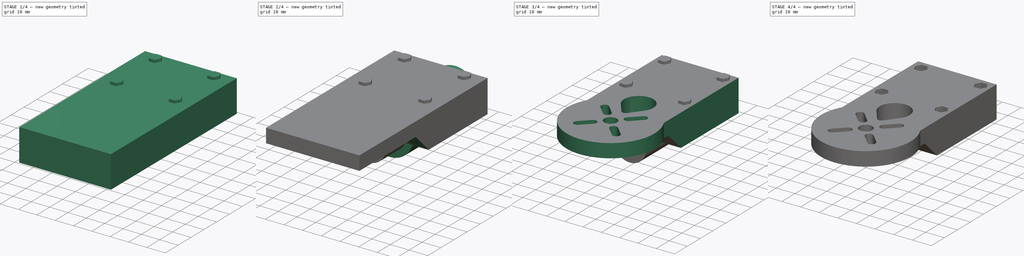
[diagram: build sequence overview — one tinted view per stage of 4, left to right]
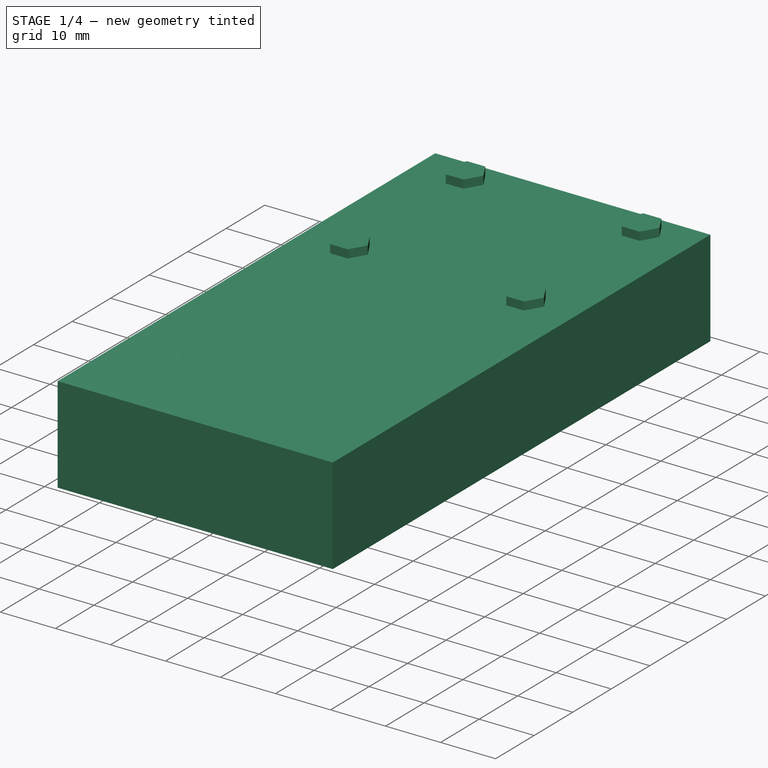
[diagram: stage 1 of 4 — iso view after this stage's code; geometry added in this stage tinted green]
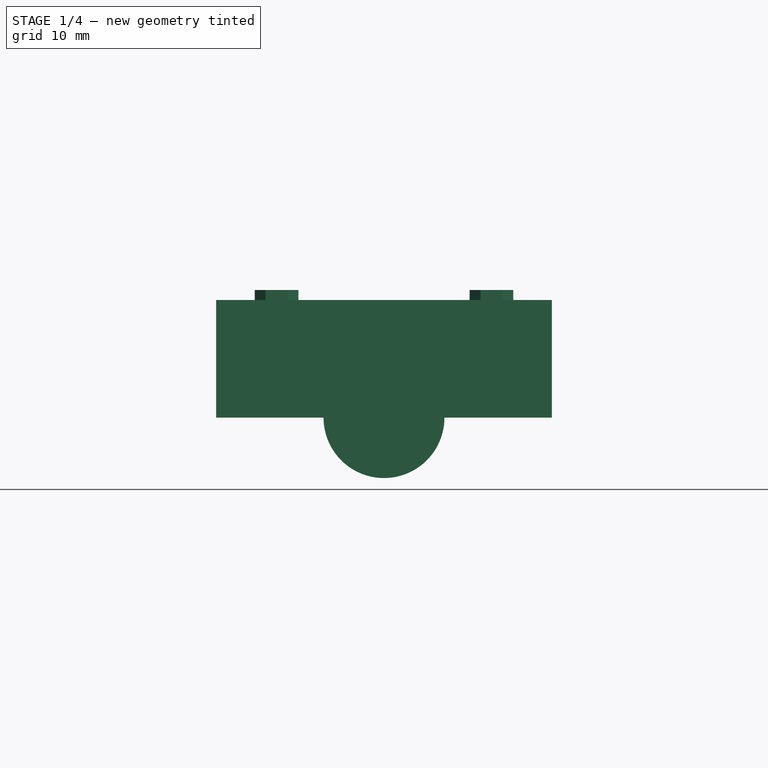
[diagram: stage 1 of 4 — front view after this stage's code; geometry added in this stage tinted green]
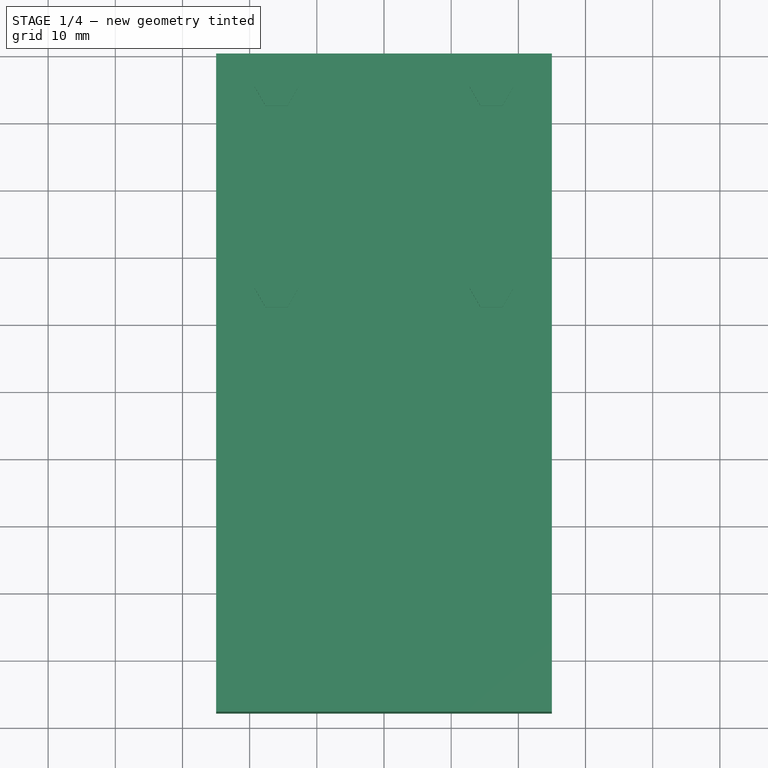
[diagram: stage 1 of 4 — top view after this stage's code; geometry added in this stage tinted green]
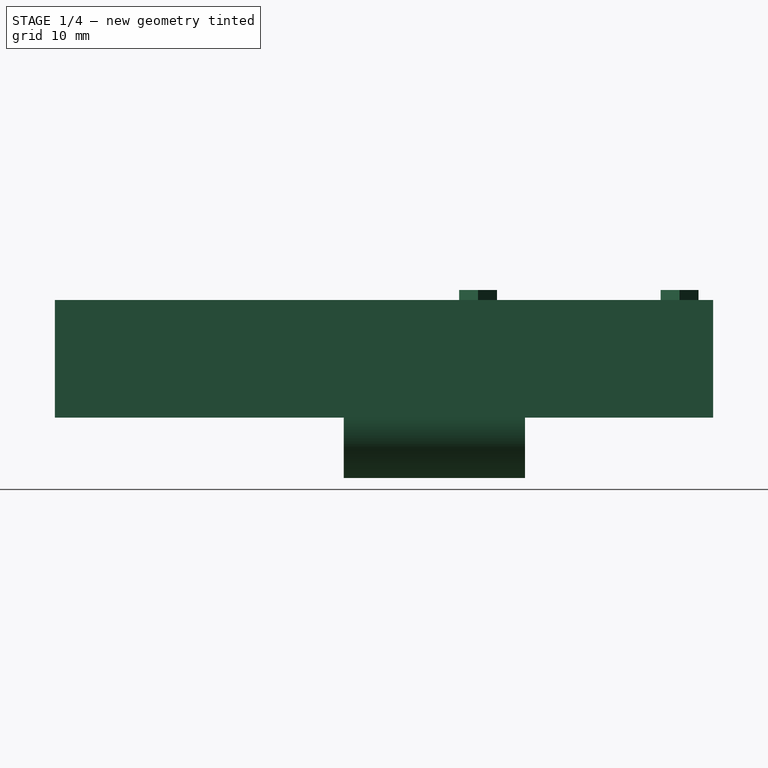
[diagram: stage 1 of 4 — right view after this stage's code; geometry added in this stage tinted green]
FCSTD DOCUMENT  (FreeCAD 0.16R6698 (Git))
Label: motor_mount_top-flat
License: All rights reserved
LicenseURL: http://en.wikipedia.org/wiki/All_rights_reserved
objects: Sketcher::SketchObject×8, Part::Extrusion×6, Part::Cut×5, Part::Chamfer×1
note: 20 computed .brp shape members not serialized (recipe doc carries the construction recipe); baked Part::Feature solids carry a one-line shape summary decoded from their .brp

FEATURE [Sketcher::SketchObject] Sketch003
  Placement = pos=(0,-28,0) rot=(1,0,0;1.5708rad)
  sketch-geometry (4):
    g0: LineSegment StartX=-25 StartY=17.5 StartZ=0 EndX=25 EndY=17.5 EndZ=0
    g1: LineSegment StartX=25 StartY=17.5 StartZ=0 EndX=25 EndY=0 EndZ=0
    g2: LineSegment StartX=25 StartY=0 StartZ=0 EndX=-25 EndY=0 EndZ=0
    g3: LineSegment StartX=-25 StartY=17.5 StartZ=0 EndX=-25 EndY=0 EndZ=0
  constraints (12):
    c: Coincident(g0,g1)
    c: Horizontal(g0)
    c: Vertical(g1)
    c: Coincident(g2,g1)
    c: Horizontal(g2)
    c: Vertical(g3)
    c: Coincident(g0,g3)
    c: DistanceX(g0,g0) = 50
    c: Coincident(g2,g3)
    c: Symmetric(g2,g1,g-2)
    c: DistanceY(g-1,g0) = 17.5
    c: PointOnObject(g2,g-1)
FEATURE [Part::Extrusion] Extrude003
  Base = -> Sketch003
  Dir = (0,98,0)
  Solid = true
FEATURE [Sketcher::SketchObject] Sketch004
  Placement = pos=(0,70,0) rot=(1,0,0;1.5708rad)
  sketch-geometry (8):
    g0: LineSegment StartX=-12 StartY=16 StartZ=0 EndX=12 EndY=16 EndZ=0
    g1: LineSegment StartX=-12 StartY=16 StartZ=0 EndX=-14 EndY=10 EndZ=0
    g2: LineSegment StartX=-14 StartY=10 StartZ=0 EndX=-21 EndY=10 EndZ=0
    g3: LineSegment StartX=21 StartY=10 StartZ=0 EndX=14 EndY=10 EndZ=0
    g4: LineSegment StartX=14 StartY=10 StartZ=0 EndX=12 EndY=16 EndZ=0
    g5: LineSegment StartX=-21 StartY=10 StartZ=0 EndX=-21 EndY=28 EndZ=0
    g6: LineSegment StartX=-21 StartY=28 StartZ=0 EndX=21 EndY=28 EndZ=0
    g7: LineSegment StartX=21 StartY=28 StartZ=0 EndX=21 EndY=10 EndZ=0
  constraints (24):
    c: Horizontal(g0)
    c: DistanceX(g0,g0) = 24
    c: Symmetric(g0,g0,g-2)
    c: Coincident(g0,g1)
    c: Coincident(g1,g2)
    c: Horizontal(g2)
    c: Horizontal(g3)
    c: Coincident(g3,g4)
    c: Coincident(g4,g0)
    c: Equal(g2,g3)
    c: Equal(g1,g4)
    c: DistanceY(g2,g0) = 6
    c: DistanceX(g2,g2) = 7
    c: Coincident(g2,g5)
    c: Vertical(g5)
    c: Coincident(g5,g6)
    c: Horizontal(g6)
    c: Coincident(g6,g7)
    c: Coincident(g7,g3)
    c: Vertical(g7)
    c: PointOnObject(g1,g3)
    c: DistanceX(g6,g6) = 42
    c: DistanceY(g-1,g2) = 10
    c: DistanceY(g7,g7) = 18
FEATURE [Sketcher::SketchObject] Sketch006
  Placement = pos=(0,33,0) rot=(1,0,0;1.5708rad)
  sketch-geometry (1):
    g0: Circle CenterX=0 CenterY=0 CenterZ=0 NormalX=0 NormalY=0 NormalZ=1 Radius=9
  constraints (2):
    c: Coincident(g0,g-1)
    c: Radius(g0) = 9
FEATURE [Part::Extrusion] Extrude005
  Base = -> Sketch006
  Dir = (0,27,0)
  Placement = pos=(0,-18,0) rot=(0,0,1;0rad)
  Solid = true
FEATURE [Sketcher::SketchObject] Sketch008
  Placement = pos=(0,40,0) rot=(0,0,1;0rad)
  sketch-geometry (32):
    g0: LineSegment [constr] StartX=-16 StartY=25 StartZ=0 EndX=16 EndY=25 EndZ=0
    g1: LineSegment [constr] StartX=16 StartY=25 StartZ=0 EndX=16 EndY=-5 EndZ=0
    g2: LineSegment [constr] StartX=16 StartY=-5 StartZ=0 EndX=-16 EndY=-5 EndZ=0
    g3: LineSegment [constr] StartX=-16 StartY=-5 StartZ=0 EndX=-16 EndY=25 EndZ=0
    g4: Circle [constr] CenterX=-16 CenterY=-5 CenterZ=0 NormalX=0 NormalY=0 NormalZ=1 Radius=3.25
    g5: Circle [constr] CenterX=16 CenterY=-5 CenterZ=0 NormalX=0 NormalY=0 NormalZ=1 Radius=3.25
    g6: Circle [constr] CenterX=-16 CenterY=25 CenterZ=0 NormalX=0 NormalY=0 NormalZ=1 Radius=3.25
    g7: Circle [constr] CenterX=16 CenterY=25 CenterZ=0 NormalX=0 NormalY=0 NormalZ=1 Radius=3.25
    g8: LineSegment StartX=-17.625 StartY=-2.18542 StartZ=0 EndX=-14.375 EndY=-2.18542 EndZ=0
    g9: LineSegment StartX=-14.375 StartY=-2.18542 StartZ=0 EndX=-12.75 EndY=-5 EndZ=0
    g10: LineSegment StartX=-12.75 StartY=-5 StartZ=0 EndX=-14.375 EndY=-7.81458 EndZ=0
    g11: LineSegment StartX=-14.375 StartY=-7.81458 StartZ=0 EndX=-17.625 EndY=-7.81458 EndZ=0
    g12: LineSegment StartX=-17.625 StartY=-7.81458 StartZ=0 EndX=-19.25 EndY=-5 EndZ=0
    g13: LineSegment StartX=-19.25 StartY=-5 StartZ=0 EndX=-17.625 EndY=-2.18542 EndZ=0
    g14: LineSegment StartX=14.375 StartY=-2.18542 StartZ=0 EndX=17.625 EndY=-2.18542 EndZ=0
    g15: LineSegment StartX=17.625 StartY=-2.18542 StartZ=0 EndX=19.25 EndY=-5 EndZ=0
    g16: LineSegment StartX=19.25 StartY=-5 StartZ=0 EndX=17.625 EndY=-7.81458 EndZ=0
    g17: LineSegment StartX=17.625 StartY=-7.81458 StartZ=0 EndX=14.375 EndY=-7.81458 EndZ=0
    g18: LineSegment StartX=14.375 StartY=-7.81458 StartZ=0 EndX=12.75 EndY=-5 EndZ=0
    g19: LineSegment StartX=12.75 StartY=-5 StartZ=0 EndX=14.375 EndY=-2.18542 EndZ=0
    g20: LineSegment StartX=14.375 StartY=27.8146 StartZ=0 EndX=17.625 EndY=27.8146 EndZ=0
    g21: LineSegment StartX=17.625 StartY=27.8146 StartZ=0 EndX=19.25 EndY=25 EndZ=0
    g22: LineSegment StartX=19.25 StartY=25 StartZ=0 EndX=17.625 EndY=22.1854 EndZ=0
    g23: LineSegment StartX=17.625 StartY=22.1854 StartZ=0 EndX=14.375 EndY=22.1854 EndZ=0
    g24: LineSegment StartX=14.375 StartY=22.1854 StartZ=0 EndX=12.75 EndY=25 EndZ=0
    g25: LineSegment StartX=12.75 StartY=25 StartZ=0 EndX=14.375 EndY=27.8146 EndZ=0
    g26: LineSegment StartX=-17.625 StartY=27.8146 StartZ=0 EndX=-14.375 EndY=27.8146 EndZ=0
    g27: LineSegment StartX=-14.375 StartY=27.8146 StartZ=0 EndX=-12.75 EndY=25 EndZ=0
    g28: LineSegment StartX=-12.75 StartY=25 StartZ=0 EndX=-14.375 EndY=22.1854 EndZ=0
    g29: LineSegment StartX=-14.375 StartY=22.1854 StartZ=0 EndX=-17.625 EndY=22.1854 EndZ=0
    g30: LineSegment StartX=-17.625 StartY=22.1854 StartZ=0 EndX=-19.25 EndY=25 EndZ=0
    g31: LineSegment StartX=-19.25 StartY=25 StartZ=0 EndX=-17.625 EndY=27.8146 EndZ=0
  constraints (92):
    c: Coincident(g0,g1)
    c: Coincident(g1,g2)
    c: Coincident(g2,g3)
    c: Coincident(g3,g0)
    c: Horizontal(g0)
    c: Horizontal(g2)
    c: Vertical(g1)
    c: Vertical(g3)
    c: Symmetric(g2,g1,g-2)
    c: DistanceY(g1,g1) = 30
    c: DistanceX(g0,g0) = 32
    c: Coincident(g5,g1)
    c: Coincident(g6,g0)
    c: Coincident(g7,g0)
    c: Equal(g6,g4)
    c: Equal(g4,g5)
    c: Equal(g5,g7)
    c: Radius(g4) = 3.25
    c: Coincident(g4,g2)
    c: PointOnObject(g8,g4)
    c: Horizontal(g8)
    c: Coincident(g8,g9)
    c: PointOnObject(g9,g4)
    c: Coincident(g9,g10)
    c: Coincident(g10,g11)
    c: PointOnObject(g11,g4)
    c: Horizontal(g11)
    c: Coincident(g11,g12)
    c: PointOnObject(g12,g4)
    c: Coincident(g12,g13)
    c: Coincident(g13,g8)
    c: Equal(g12,g13)
    c: Equal(g13,g8)
    c: Equal(g8,g9)
    c: Equal(g9,g10)
    c: Equal(g10,g11)
    c: PointOnObject(g8,g4)
    c: PointOnObject(g14,g5)
    c: Horizontal(g14)
    c: Coincident(g14,g15)
    c: PointOnObject(g15,g5)
    c: Coincident(g15,g16)
    c: PointOnObject(g16,g5)
    c: Coincident(g16,g17)
    c: PointOnObject(g17,g5)
    c: Horizontal(g17)
    c: Coincident(g17,g18)
    c: Coincident(g18,g19)
    c: Coincident(g19,g14)
    c: PointOnObject(g20,g7)
    c: PointOnObject(g20,g7)
    c: Horizontal(g20)
    c: Coincident(g20,g21)
    c: PointOnObject(g21,g7)
    c: Coincident(g21,g22)
    c: PointOnObject(g22,g7)
    c: Coincident(g22,g23)
    c: PointOnObject(g23,g7)
    c: Horizontal(g23)
    c: Coincident(g23,g24)
    c: PointOnObject(g24,g7)
    c: Coincident(g24,g25)
    c: Coincident(g25,g20)
    c: PointOnObject(g26,g6)
    c: Horizontal(g26)
    c: Coincident(g26,g27)
    c: PointOnObject(g27,g6)
    c: Coincident(g27,g28)
    c: PointOnObject(g28,g6)
    c: Coincident(g28,g29)
    c: PointOnObject(g29,g6)
    c: Horizontal(g29)
    c: Coincident(g29,g30)
    c: PointOnObject(g30,g6)
    c: Coincident(g30,g31)
    c: Coincident(g31,g26)
    c: Equal(g31,g26)
    c: Equal(g26,g27)
    c: Equal(g27,g28)
    c: Equal(g28,g29)
    c: Equal(g29,g30)
    c: Equal(g21,g20)
    c: Equal(g20,g25)
    c: Equal(g25,g24)
    c: Equal(g24,g23)
    c: Equal(g14,g15)
    c: Equal(g15,g16)
    c: Equal(g16,g17)
    c: Equal(g17,g18)
    c: Equal(g18,g19)
    c: PointOnObject(g18,g5)
    c: DistanceY(g-1,g0) = 25
FEATURE [Part::Extrusion] Extrude006
  Base = -> Sketch008
  Dir = (0,0,10)
  Placement = pos=(0,0,9) rot=(0,0,1;0rad)
  Solid = true
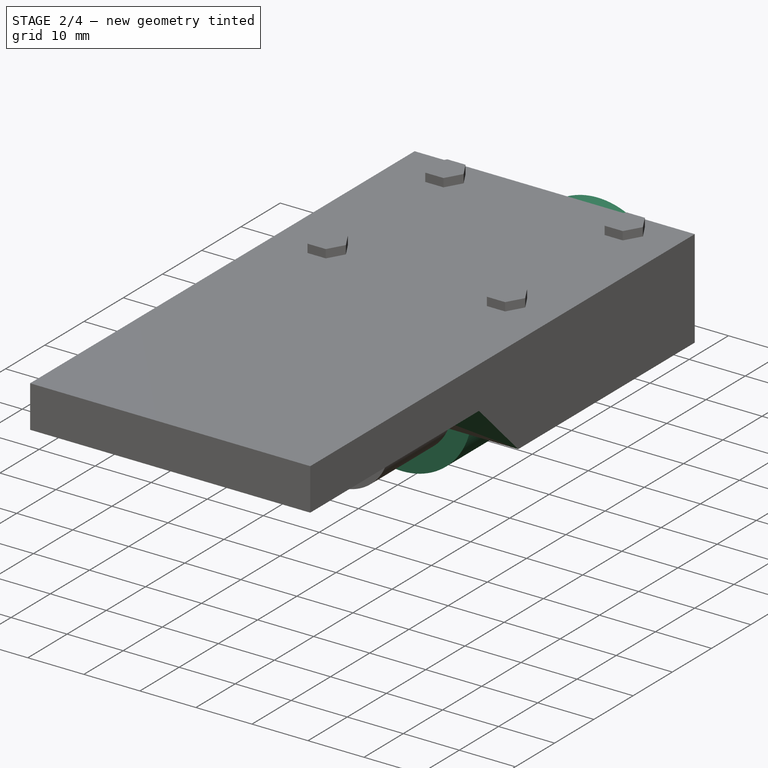
[diagram: stage 2 of 4 — iso view after this stage's code; geometry added in this stage tinted green]
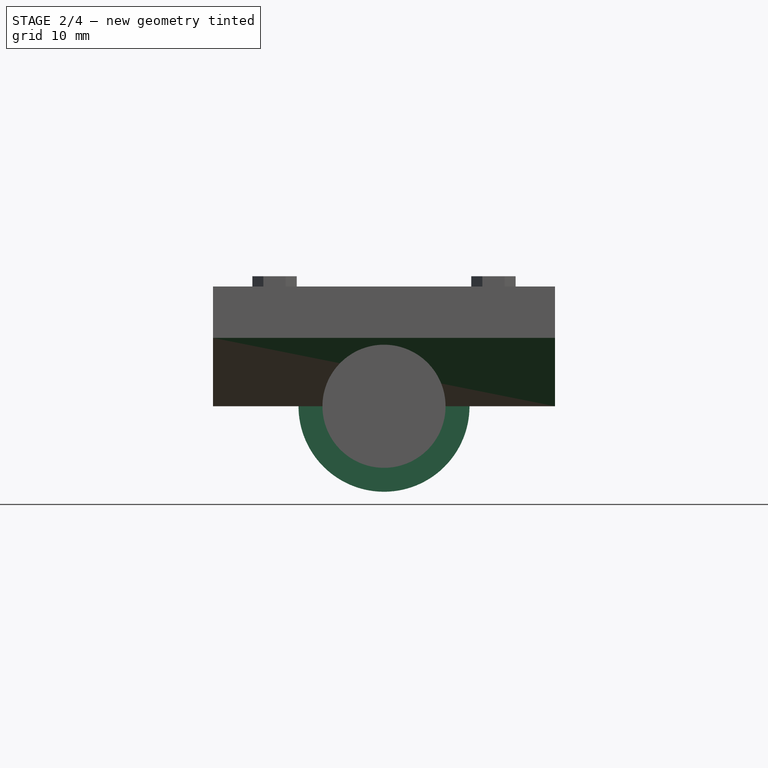
[diagram: stage 2 of 4 — front view after this stage's code; geometry added in this stage tinted green]
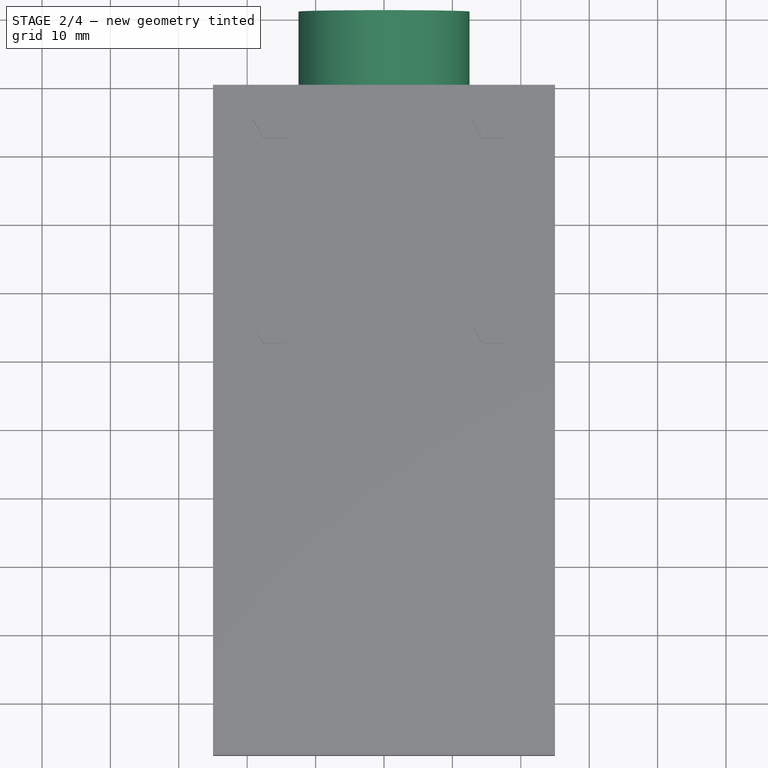
[diagram: stage 2 of 4 — top view after this stage's code; geometry added in this stage tinted green]
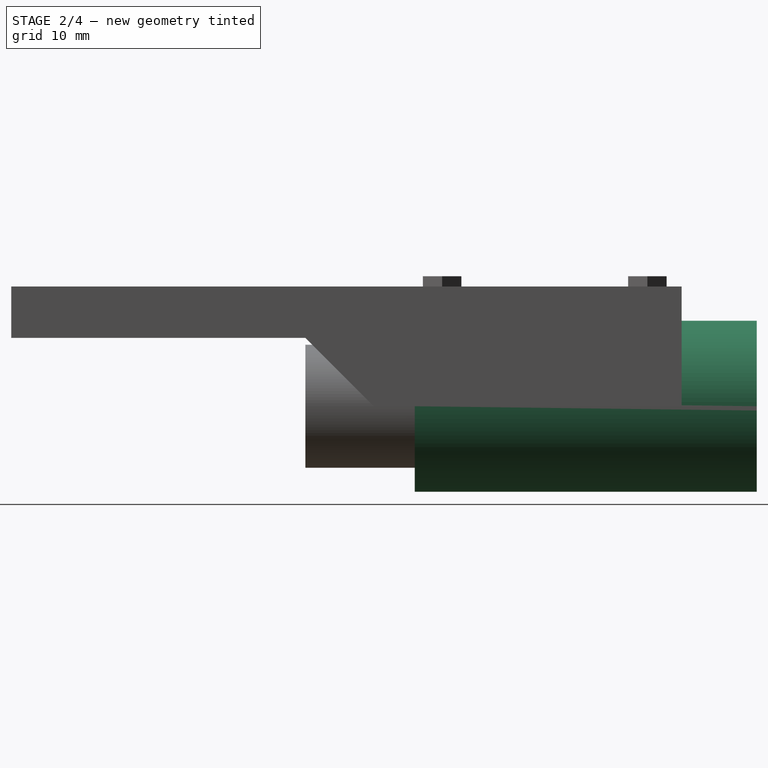
[diagram: stage 2 of 4 — right view after this stage's code; geometry added in this stage tinted green]
FEATURE [Sketcher::SketchObject] Sketch002
  Placement = pos=(33,0,0) rot=(0.57735,0.57735,0.57735;2.0944rad)
  sketch-geometry (4):
    g0: LineSegment StartX=-30 StartY=10 StartZ=0 EndX=15 EndY=10 EndZ=0
    g1: LineSegment StartX=25 StartY=0 StartZ=0 EndX=-30 EndY=0 EndZ=0
    g2: LineSegment StartX=-30 StartY=0 StartZ=0 EndX=-30 EndY=10 EndZ=0
    g3: LineSegment StartX=15 StartY=10 StartZ=0 EndX=25 EndY=0 EndZ=0
  constraints (12):
    c: Coincident(g1,g2)
    c: Coincident(g2,g0)
    c: Horizontal(g0)
    c: Horizontal(g1)
    c: Vertical(g2)
    c: DistanceY(g2,g2) = 10
    c: PointOnObject(g-1,g1)
    c: DistanceX(g-1,g0) = 15
    c: DistanceX(g0,g-1) = 30
    c: Coincident(g3,g0)
    c: Coincident(g3,g1)
    c: Angle(g3,g1) = 0.785398
FEATURE [Part::Extrusion] Extrude002
  Base = -> Sketch002
  Dir = (-60,0,0)
  Solid = true
FEATURE [Part::Extrusion] Extrude004
  Base = -> Sketch001
  Dir = (0,50,0)
  Placement = pos=(0,-1,0) rot=(0,0,1;0rad)
  Solid = true
FEATURE [Part::Cut] Cut
  Base = -> Extrude003
  Tool = -> Extrude002
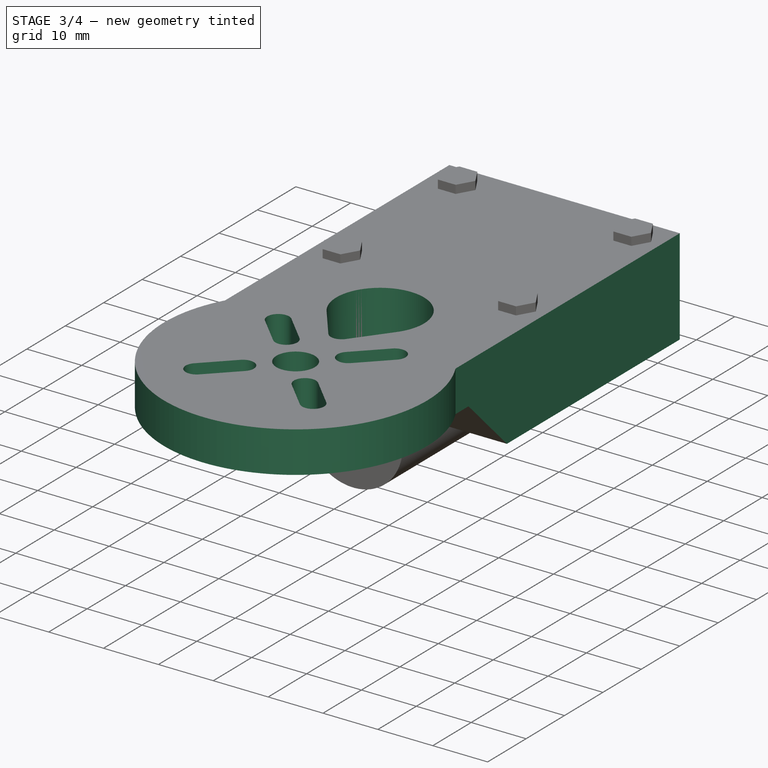
[diagram: stage 3 of 4 — iso view after this stage's code; geometry added in this stage tinted green]
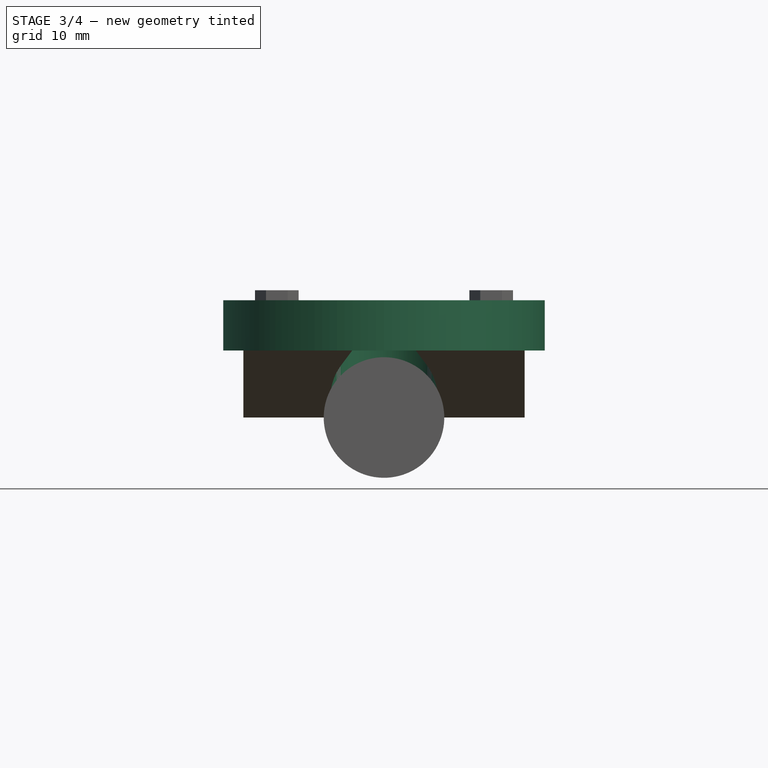
[diagram: stage 3 of 4 — front view after this stage's code; geometry added in this stage tinted green]
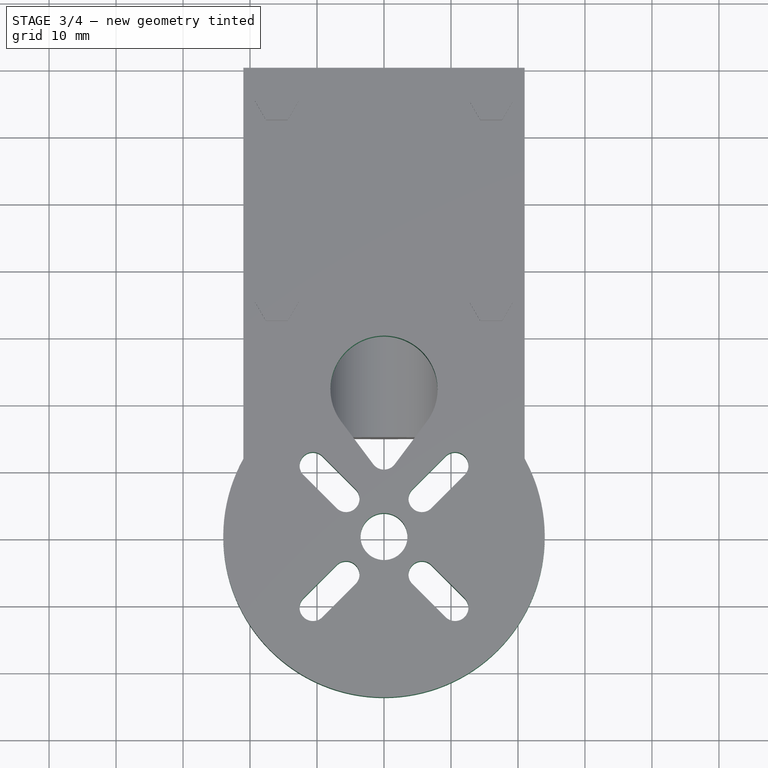
[diagram: stage 3 of 4 — top view after this stage's code; geometry added in this stage tinted green]
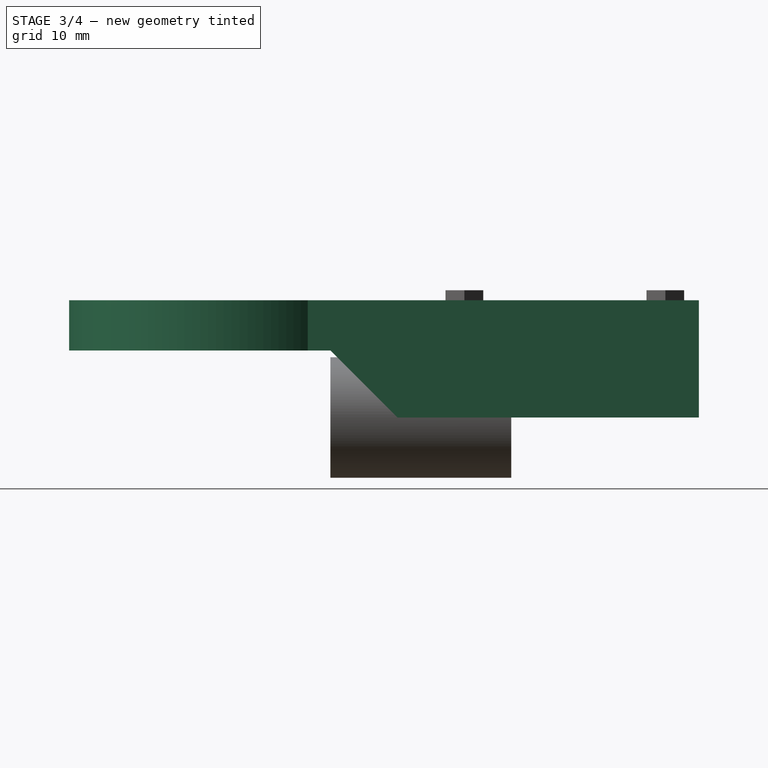
[diagram: stage 3 of 4 — right view after this stage's code; geometry added in this stage tinted green]
FEATURE [Sketcher::SketchObject] Sketch
  sketch-geometry (44):
    g0: Circle CenterX=0 CenterY=0 CenterZ=0 NormalX=0 NormalY=0 NormalZ=1 Radius=3.5
    g1: LineSegment [constr] StartX=-30 StartY=-30 StartZ=0 EndX=30 EndY=30 EndZ=0
    g2: LineSegment [constr] StartX=-30 StartY=30 StartZ=0 EndX=30 EndY=-30 EndZ=0
    g3: LineSegment [constr] StartX=-30 StartY=30 StartZ=0 EndX=30 EndY=30 EndZ=0
    g4: LineSegment [constr] StartX=30 StartY=30 StartZ=0 EndX=30 EndY=-30 EndZ=0
    g5: LineSegment [constr] StartX=30 StartY=-30 StartZ=0 EndX=-30 EndY=-30 EndZ=0
    g6: LineSegment [constr] StartX=-30 StartY=-30 StartZ=0 EndX=-30 EndY=30 EndZ=0
    g7: ArcOfCircle CenterX=-10.6066 CenterY=-10.6066 CenterZ=0 NormalX=0 NormalY=0 NormalZ=1 Radius=2 StartAngle=2.35619 EndAngle=5.49779
    g8: ArcOfCircle CenterX=-5.65685 CenterY=-5.65685 CenterZ=0 NormalX=0 NormalY=0 NormalZ=1 Radius=2 StartAngle=5.49779 EndAngle=8.63938
    g9: LineSegment StartX=-9.19239 StartY=-12.0208 StartZ=0 EndX=-4.24264 EndY=-7.07107 EndZ=0
    g10: LineSegment StartX=-12.0208 StartY=-9.19239 StartZ=0 EndX=-7.07107 EndY=-4.24264 EndZ=0
    g11: Circle [constr] CenterX=0 CenterY=0 CenterZ=0 NormalX=0 NormalY=0 NormalZ=1 Radius=8
    g12: ArcOfCircle CenterX=5.65685 CenterY=-5.65685 CenterZ=0 NormalX=0 NormalY=0 NormalZ=1 Radius=2 StartAngle=0.785398 EndAngle=3.92699
    g13: ArcOfCircle CenterX=10.6066 CenterY=-10.6066 CenterZ=0 NormalX=0 NormalY=0 NormalZ=1 Radius=2 StartAngle=3.92699 EndAngle=7.06858
    g14: LineSegment StartX=4.24264 StartY=-7.07107 StartZ=0 EndX=9.19239 EndY=-12.0208 EndZ=0
    g15: LineSegment StartX=7.07107 StartY=-4.24264 StartZ=0 EndX=12.0208 EndY=-9.19239 EndZ=0
    g16: ArcOfCircle CenterX=5.65685 CenterY=5.65685 CenterZ=0 NormalX=0 NormalY=0 NormalZ=1 Radius=2 StartAngle=2.35619 EndAngle=5.49779
    g17: ArcOfCircle CenterX=10.6066 CenterY=10.6066 CenterZ=0 NormalX=0 NormalY=0 NormalZ=1 Radius=2 StartAngle=5.49779 EndAngle=8.63938
    g18: LineSegment StartX=7.07107 StartY=4.24264 StartZ=0 EndX=12.0208 EndY=9.19239 EndZ=0
    g19: LineSegment StartX=4.24264 StartY=7.07107 StartZ=0 EndX=9.19239 EndY=12.0208 EndZ=0
    g20: ArcOfCircle CenterX=-10.6066 CenterY=10.6066 CenterZ=0 NormalX=0 NormalY=0 NormalZ=1 Radius=2 StartAngle=0.785398 EndAngle=3.92699
    g21: ArcOfCircle CenterX=-5.65685 CenterY=5.65685 CenterZ=0 NormalX=0 NormalY=0 NormalZ=1 Radius=2 StartAngle=3.92699 EndAngle=7.06858
    g22: LineSegment StartX=-12.0208 StartY=9.19239 StartZ=0 EndX=-7.07107 EndY=4.24264 EndZ=0
    g23: LineSegment StartX=-9.19239 StartY=12.0208 StartZ=0 EndX=-4.24264 EndY=7.07107 EndZ=0
    g24: ArcOfCircle CenterX=0 CenterY=22 CenterZ=0 NormalX=0 NormalY=0 NormalZ=1 Radius=8 StartAngle=5.63968 EndAngle=10.0683
    g25: ArcOfCircle CenterX=0 CenterY=12 CenterZ=0 NormalX=0 NormalY=0 NormalZ=1 Radius=2 StartAngle=3.78509 EndAngle=5.63968
    g26: LineSegment StartX=-6.4 StartY=17.2 StartZ=0 EndX=-1.6 EndY=10.8 EndZ=0
    g27: LineSegment StartX=6.4 StartY=17.2 StartZ=0 EndX=1.6 EndY=10.8 EndZ=0
    g28: ArcOfCircle CenterX=0 CenterY=0 CenterZ=0 NormalX=0 NormalY=0 NormalZ=1 Radius=24 StartAngle=2.63623 EndAngle=6.78855
    g29: LineSegment StartX=-21 StartY=11.619 StartZ=0 EndX=-21 EndY=70 EndZ=0
    g30: LineSegment StartX=-21 StartY=70 StartZ=0 EndX=-30 EndY=70 EndZ=0
    g31: LineSegment StartX=-30 StartY=70 StartZ=0 EndX=-30 EndY=-30 EndZ=0
    g32: LineSegment StartX=-30 StartY=-30 StartZ=0 EndX=30 EndY=-30 EndZ=0
    g33: LineSegment StartX=30 StartY=-30 StartZ=0 EndX=30 EndY=70 EndZ=0
    g34: LineSegment StartX=30 StartY=70 StartZ=0 EndX=21 EndY=70 EndZ=0
    g35: LineSegment StartX=21 StartY=70 StartZ=0 EndX=21 EndY=11.619 EndZ=0
    g36: Circle CenterX=-16 CenterY=35 CenterZ=0 NormalX=0 NormalY=0 NormalZ=1 Radius=1.75
    g37: LineSegment [constr] StartX=-16 StartY=35 StartZ=0 EndX=16 EndY=35 EndZ=0
    g38: LineSegment [constr] StartX=16 StartY=35 StartZ=0 EndX=16 EndY=65 EndZ=0
    g39: LineSegment [constr] StartX=16 StartY=65 StartZ=0 EndX=-16 EndY=65 EndZ=0
    g40: LineSegment [constr] StartX=-16 StartY=65 StartZ=0 EndX=-16 EndY=35 EndZ=0
    g41: Circle CenterX=-16 CenterY=65 CenterZ=0 NormalX=0 NormalY=0 NormalZ=1 Radius=1.75
    g42: Circle CenterX=16 CenterY=65 CenterZ=0 NormalX=0 NormalY=0 NormalZ=1 Radius=1.75
    g43: Circle CenterX=16 CenterY=35 CenterZ=0 NormalX=0 NormalY=0 NormalZ=1 Radius=1.75
  constraints (114):
    c: Coincident(g0,g-1)
    c: Radius(g0) = 3.5
    c: PointOnObject(g-1,g2)
    c: PointOnObject(g-1,g1)
    c: Angle(g1) = 0.785398
    c: Coincident(g3,g4)
    c: Coincident(g4,g5)
    c: Coincident(g5,g6)
    c: Coincident(g6,g3)
    c: Horizontal(g5)
    c: Vertical(g6)
    c: Equal(g3,g6)
    c: Equal(g6,g5)
    c: Equal(g5,g4)
    c: Coincident(g2,g3)
    c: Coincident(g1,g3)
    c: Coincident(g1,g5)
    c: Coincident(g2,g4)
    c: DistanceY(g4,g4) = 60
    c: Tangent(g7,g10) = 1.5708
    c: Tangent(g7,g9) = -1.5708
    c: Tangent(g9,g8) = -1.5708
    c: Tangent(g10,g8) = 1.5708
    c: Equal(g7,g8)
    c: PointOnObject(g7,g1)
    c: PointOnObject(g8,g1)
    c: Distance(g9) = 7
    c: Radius(g7) = 2
    c: Coincident(g11,g-1)
    c: PointOnObject(g8,g11)
    c: Radius(g11) = 8
    c: Tangent(g12,g15) = 1.5708
    c: Tangent(g12,g14) = -1.5708
    c: Tangent(g14,g13) = -1.5708
    c: Tangent(g15,g13) = 1.5708
    c: Equal(g12,g13)
    c: PointOnObject(g12,g11)
    c: PointOnObject(g13,g2)
    c: PointOnObject(g12,g2)
    c: Equal(g15,g10)
    c: Equal(g13,g7)
    c: Tangent(g16,g19) = 1.5708
    c: Tangent(g16,g18) = -1.5708
    c: Tangent(g18,g17) = -1.5708
    c: Tangent(g19,g17) = 1.5708
    c: Equal(g16,g17)
    c: PointOnObject(g16,g11)
    c: Equal(g18,g10)
    c: Equal(g17,g7)
    c: PointOnObject(g16,g1)
    c: PointOnObject(g17,g1)
    c: Tangent(g20,g23) = 1.5708
    c: Tangent(g20,g22) = -1.5708
    c: Tangent(g22,g21) = -1.5708
    c: Tangent(g23,g21) = 1.5708
    c: Equal(g20,g21)
    c: Equal(g20,g7)
    c: Equal(g23,g10)
    c: PointOnObject(g21,g11)
    c: PointOnObject(g21,g2)
    c: PointOnObject(g20,g2)
    c: Tangent(g24,g27) = 1.5708
    c: Tangent(g24,g26) = -1.5708
    c: Tangent(g26,g25) = -1.5708
    c: Tangent(g27,g25) = 1.5708
    c: PointOnObject(g25,g-2)
    c: Distance(g27) = 8
    c: Radius(g25) = 2
    c: Radius(g24) = 8
    c: PointOnObject(g24,g-2)
    c: DistanceY(g-1,g25) = 12
    c: Coincident(g28,g-1)
    c: Radius(g28) = 24
    c: Coincident(g29,g28)
    c: Vertical(g29)
    c: Horizontal(g30)
    c: Vertical(g31)
    c: Coincident(g32,g31)
    c: Horizontal(g32)
    c: Vertical(g33)
    c: Coincident(g34,g33)
    c: Horizontal(g34)
    c: Coincident(g35,g28)
    c: Vertical(g35)
    c: Coincident(g35,g34)
    c: Equal(g29,g35)
    c: Equal(g31,g33)
    c: Equal(g30,g34)
    c: Coincident(g33,g32)
    c: Coincident(g30,g29)
    c: Coincident(g30,g31)
    c: Coincident(g32,g2)
    c: DistanceY(g33,g33) = 100
    c: DistanceX(g34,g34) = 9
    c: Radius(g36) = 1.75
    c: Coincident(g37,g38)
    c: Coincident(g38,g39)
    c: Coincident(g39,g40)
    c: Coincident(g40,g37)
    c: Horizontal(g37)
    c: Horizontal(g39)
    c: Vertical(g38)
    c: Vertical(g40)
    c: Coincident(g37,g36)
    c: DistanceX(g39,g39) = 32
    c: DistanceY(g38,g38) = 30
    c: Symmetric(g39,g38,g-2)
    c: Coincident(g41,g39)
    c: Coincident(g42,g38)
    c: Coincident(g43,g37)
    c: Equal(g41,g42)
    c: Equal(g42,g43)
    c: Equal(g43,g36)
    c: DistanceY(g-1,g39) = 65
FEATURE [Sketcher::SketchObject] Sketch001
  Placement = pos=(0,32,0) rot=(1,0,0;1.5708rad)
  sketch-geometry (1):
    g0: Circle CenterX=0 CenterY=0 CenterZ=0 NormalX=0 NormalY=0 NormalZ=1 Radius=12.5
  constraints (2):
    c: Coincident(g0,g-1)
    c: Radius(g0) = 12.5
FEATURE [Part::Extrusion] Extrude
  Base = -> Sketch
  Dir = (0,0,30)
  Solid = true
FEATURE [Part::Cut] Cut001
  Base = -> Cut
  Tool = -> Extrude004
FEATURE [Part::Cut] Cut002
  Base = -> Cut001
  Tool = -> Extrude
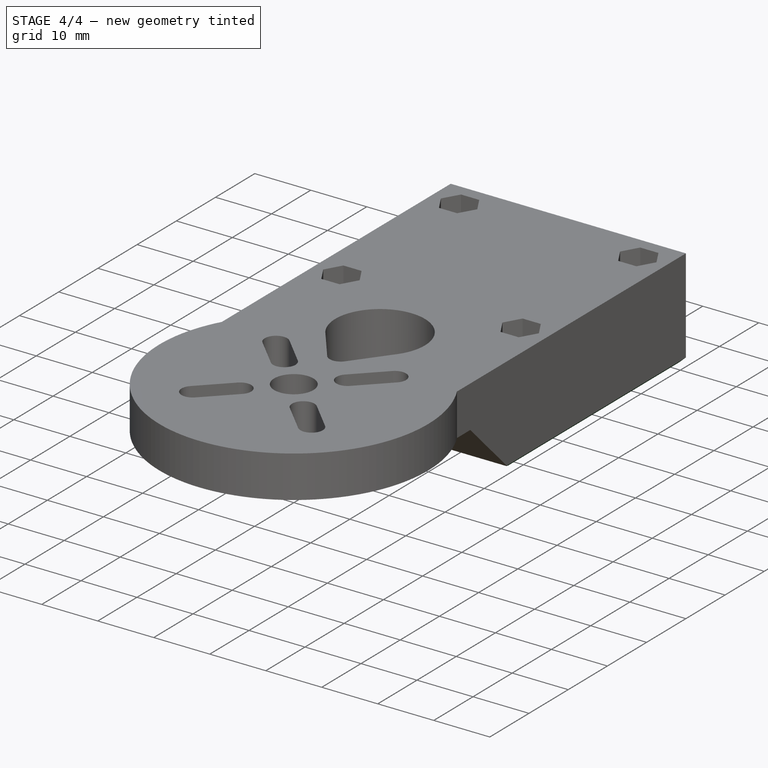
[diagram: stage 4 of 4 — iso view after this stage's code; geometry added in this stage tinted green]
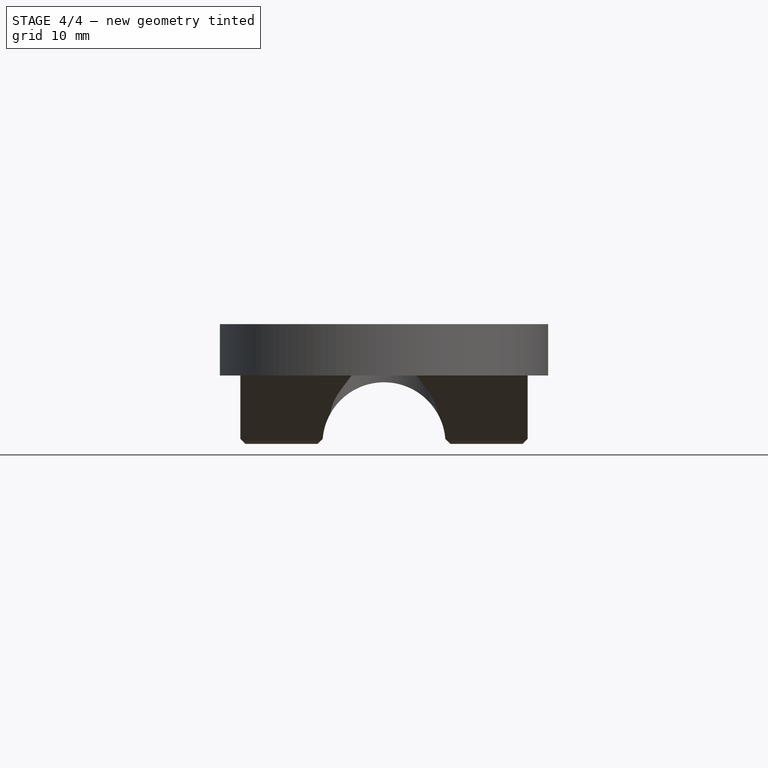
[diagram: stage 4 of 4 — front view after this stage's code; geometry added in this stage tinted green]
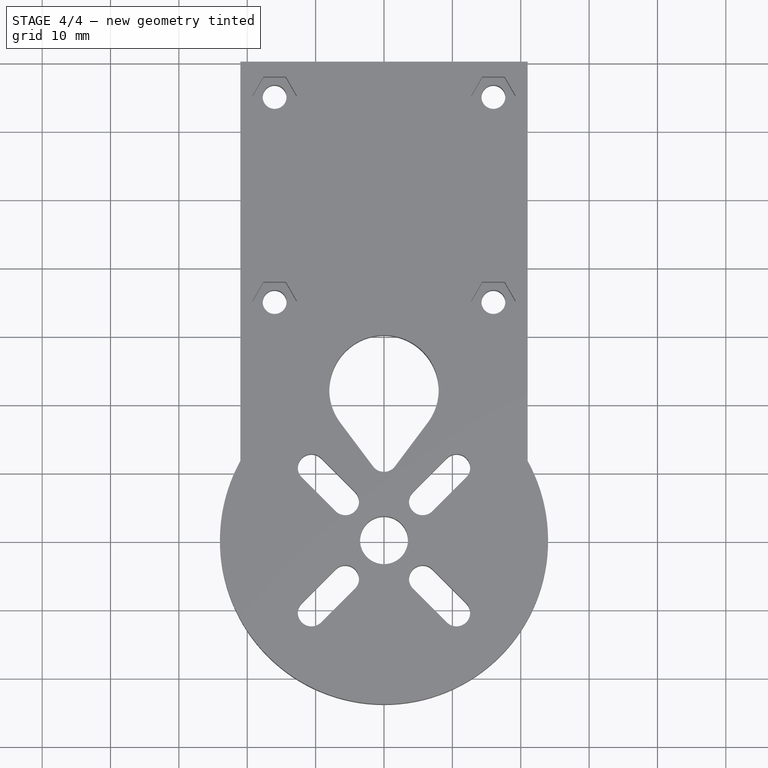
[diagram: stage 4 of 4 — top view after this stage's code; geometry added in this stage tinted green]
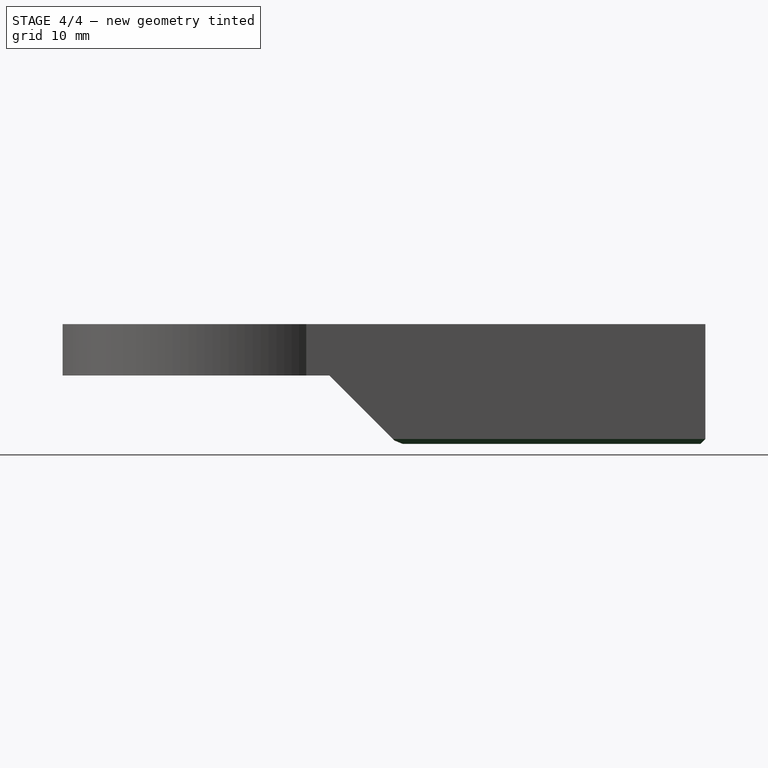
[diagram: stage 4 of 4 — right view after this stage's code; geometry added in this stage tinted green]
FEATURE [Sketcher::SketchObject] Sketch007
  sketch-geometry (8):
    g0: LineSegment [constr] StartX=-16 StartY=65 StartZ=0 EndX=16 EndY=65 EndZ=0
    g1: LineSegment [constr] StartX=16 StartY=65 StartZ=0 EndX=16 EndY=45 EndZ=0
    g2: LineSegment [constr] StartX=16 StartY=45 StartZ=0 EndX=-16 EndY=45 EndZ=0
    g3: LineSegment [constr] StartX=-16 StartY=45 StartZ=0 EndX=-16 EndY=65 EndZ=0
    g4: Circle CenterX=-16 CenterY=45 CenterZ=0 NormalX=0 NormalY=0 NormalZ=1 Radius=3.25
    g5: Circle CenterX=16 CenterY=45 CenterZ=0 NormalX=0 NormalY=0 NormalZ=1 Radius=3.25
    g6: Circle CenterX=-16 CenterY=65 CenterZ=0 NormalX=0 NormalY=0 NormalZ=1 Radius=3.25
    g7: Circle CenterX=16 CenterY=65 CenterZ=0 NormalX=0 NormalY=0 NormalZ=1 Radius=3.25
  constraints (20):
    c: Coincident(g0,g1)
    c: Coincident(g1,g2)
    c: Coincident(g2,g3)
    c: Coincident(g3,g0)
    c: Horizontal(g0)
    c: Horizontal(g2)
    c: Vertical(g1)
    c: Vertical(g3)
    c: Symmetric(g2,g1,g-2)
    c: DistanceY(g1,g1) = 20
    c: DistanceX(g0,g0) = 32
    c: DistanceY(g-1,g1) = 45
    c: Coincident(g5,g1)
    c: Coincident(g6,g0)
    c: Coincident(g7,g0)
    c: Equal(g6,g4)
    c: Equal(g4,g5)
    c: Equal(g5,g7)
    c: Radius(g4) = 3.25
    c: Coincident(g4,g2)
FEATURE [Part::Cut] Cut003
  Base = -> Cut002
  Tool = -> Extrude005
FEATURE [Part::Cut] Cut004
  Base = -> Cut003
  Tool = -> Extrude006
FEATURE [Part::Chamfer] Chamfer
  Base = -> Cut004
  Edges = 13 edges r=0.7: [Edge52,Edge58,Edge59,Edge60,Edge61,Edge162,Edge164,Edge165,Edge166,Edge169,Edge170,Edge171,Edge172]
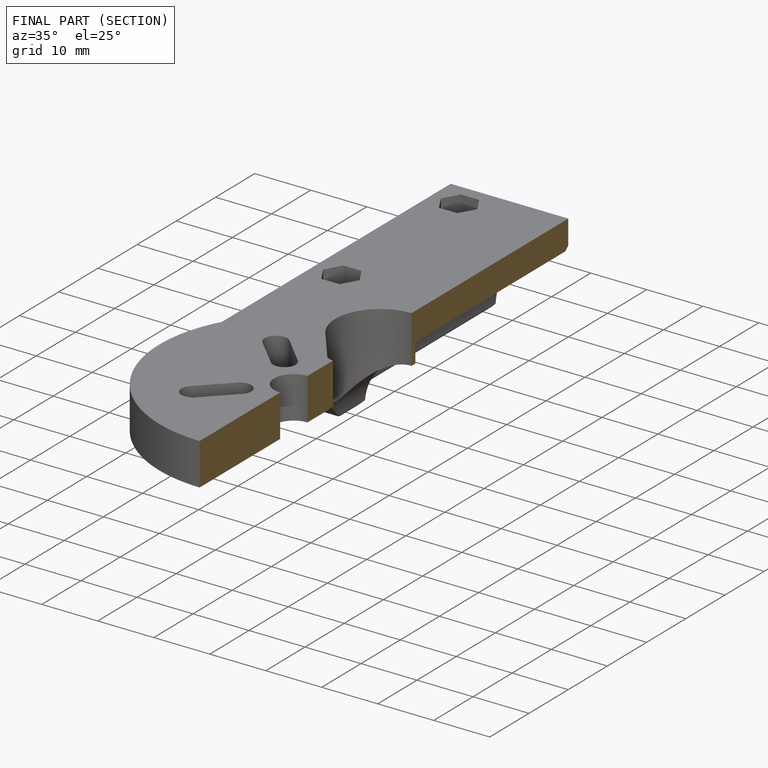
[diagram: finished part — half-section view (interior)]
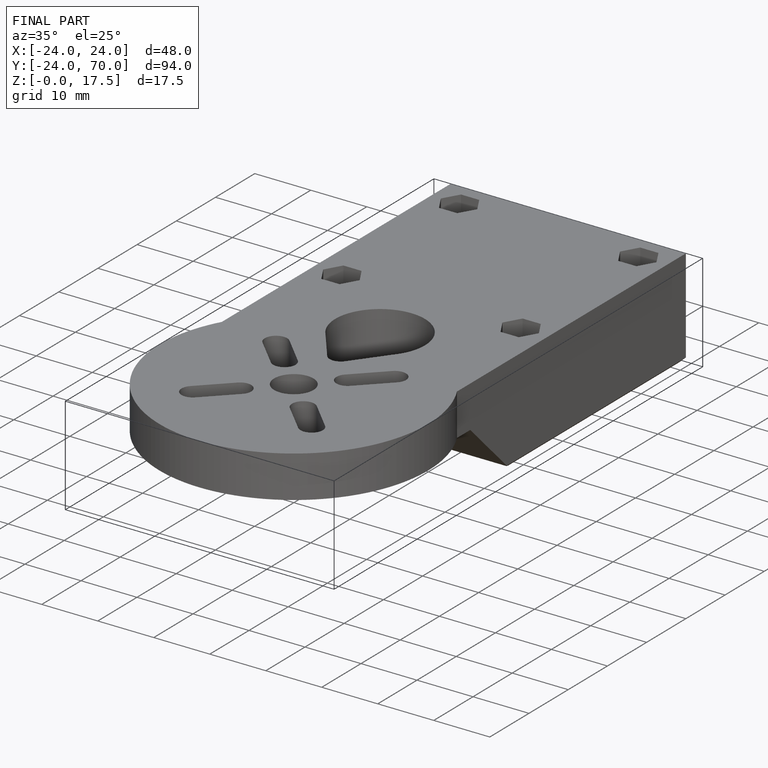
[diagram: finished part — iso view with bounding-box wireframe]
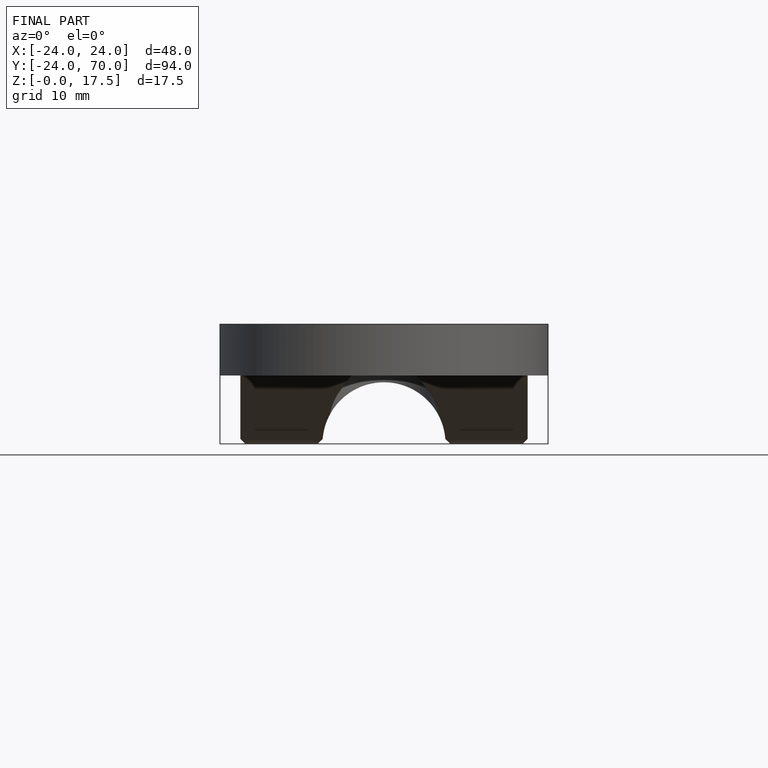
[diagram: finished part — front view with bounding-box wireframe]
